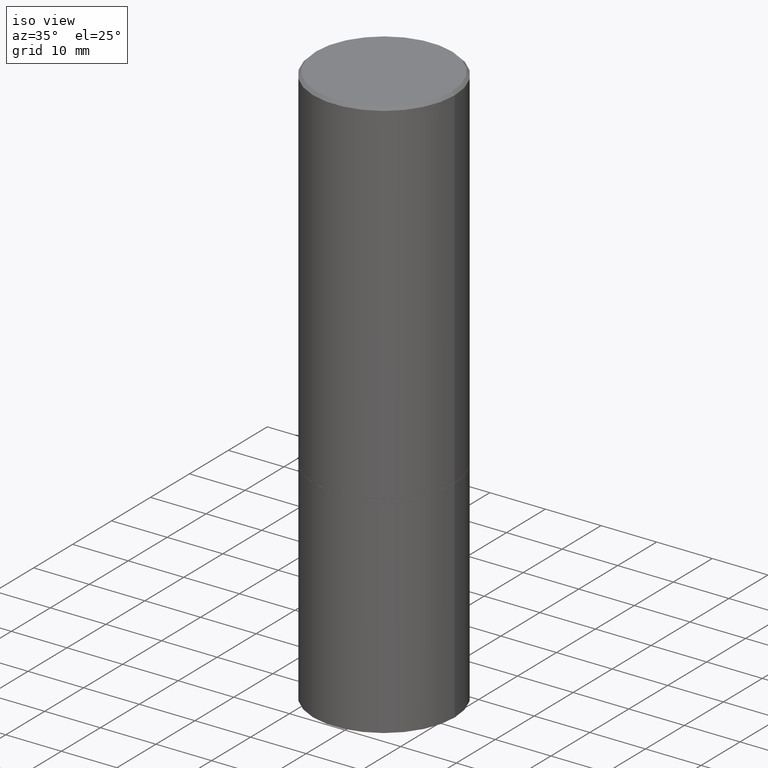
[diagram: clean part render]
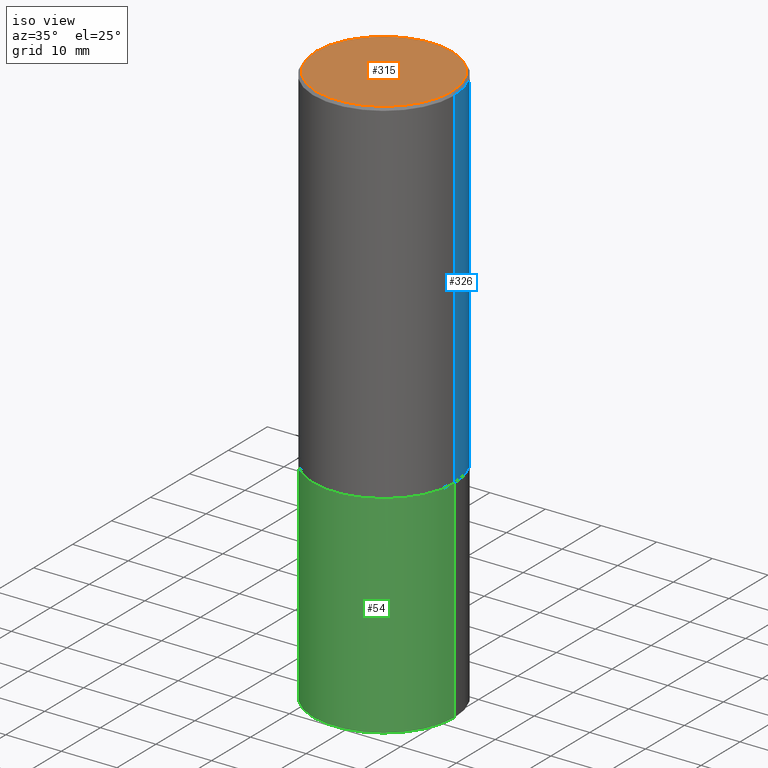
[diagram: same view with three faces highlighted in distinct colors, each labeled with its STEP entity id]
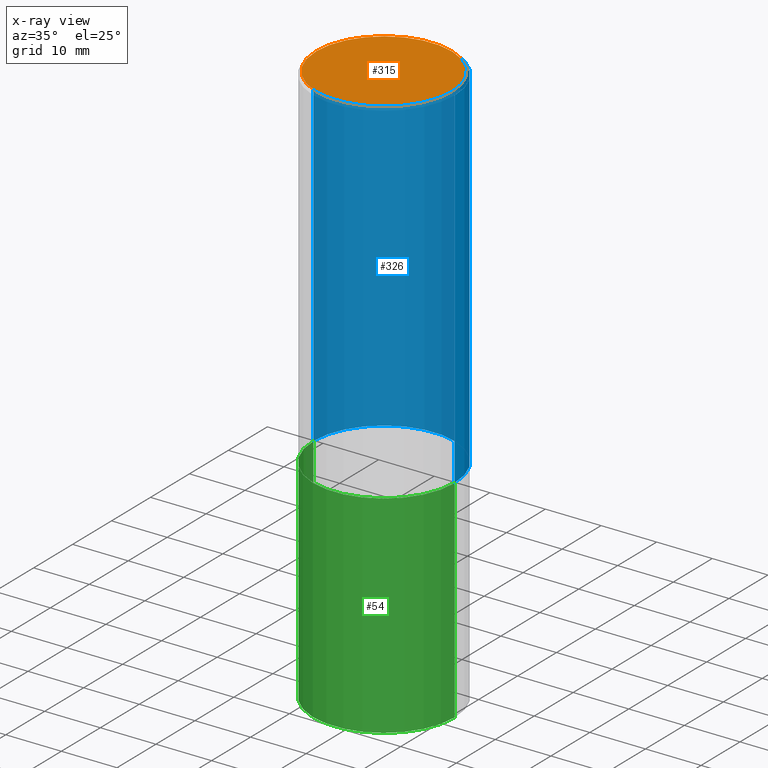
[diagram: x-ray of the same camera — body ghosted, the three highlighted faces saturated]
A machine part, iso view with three faces highlighted in distinct colors.
The next image is the same camera in x-ray (body ghosted, the three faces saturated) — at least one of them is partly hidden behind the body in this view.
Their STEP definitions:

[orange] entity #315 — the highlighted planar face has unit normal (0, -0, -1).
#14 = CARTESIAN_POINT ( 'NONE',  ( -3.131554243005659264E-46, 4.471029511141341874E-32, 1.280553747030123384E-17 ) ) ;
#36 = CARTESIAN_POINT ( 'NONE',  ( -0.4799999999999995381, 3.386736898677836041E-15, 1.280553747027767124E-17 ) ) ;
#46 = AXIS2_PLACEMENT_3D ( 'NONE', #14, #242, #120 ) ;
#68 = CARTESIAN_POINT ( 'NONE',  ( 0.4799999999999995381, -3.396558832296479338E-15, 1.280553747032483033E-17 ) ) ;
#69 = CARTESIAN_POINT ( 'NONE',  ( 3.351822085289404392E-15, 0.4799999999999995381, -1.669508273909557670E-15 ) ) ;
#83 = CARTESIAN_POINT ( 'NONE',  ( -3.131554243005659264E-46, 4.471029511141341874E-32, 1.280553747030123384E-17 ) ) ;
#84 = VERTEX_POINT ( 'NONE', #68 ) ;
#113 = DIRECTION ( 'NONE',  ( -2.445468806185136597E-29, 3.491481338843145583E-15, 1.000000000000000000 ) ) ;
#120 = DIRECTION ( 'NONE',  ( 1.000000000000000000, -6.982962677686266711E-15, 4.876036955247133888E-29 ) ) ;
#130 = EDGE_LOOP ( 'NONE', ( #362, #313 ) ) ;
#154 = DIRECTION ( 'NONE',  ( 1.000000000000000000, -6.982962677686266711E-15, 4.876036955247133888E-29 ) ) ;
#157 = AXIS2_PLACEMENT_3D ( 'NONE', #69, #183, #303 ) ;
#161 = EDGE_CURVE ( 'NONE', #255, #84, #226, .T. ) ;
#177 = AXIS2_PLACEMENT_3D ( 'NONE', #83, #113, #154 ) ;
#183 = DIRECTION ( 'NONE',  ( 2.438088387897960049E-29, -3.491481338843145188E-15, -1.000000000000000000 ) ) ;
#212 = FACE_OUTER_BOUND ( 'NONE', #130, .T. ) ;
#222 = CIRCLE ( 'NONE', #46, 0.4799999999999995381 ) ;
#226 = CIRCLE ( 'NONE', #177, 0.4799999999999995381 ) ;
#242 = DIRECTION ( 'NONE',  ( -2.445468806185136597E-29, 3.491481338843145583E-15, 1.000000000000000000 ) ) ;
#255 = VERTEX_POINT ( 'NONE', #36 ) ;
#281 = EDGE_CURVE ( 'NONE', #84, #255, #222, .T. ) ;
#303 = DIRECTION ( 'NONE',  ( -1.000000000000000000, 6.982962677686265922E-15, -4.876176775795935793E-29 ) ) ;
#313 = ORIENTED_EDGE ( 'NONE', *, *, #281, .T. ) ;
#315 = ADVANCED_FACE ( 'NONE', ( #212 ), #342, .F. ) ;
#342 = PLANE ( 'NONE',  #157 ) ;
#362 = ORIENTED_EDGE ( 'NONE', *, *, #161, .T. ) ;

[blue] entity #326 — the highlighted cylindrical surface (partial cylindrical patch) has radius 12.7 mm, axis along (-0, 0, 1).
#11 = AXIS2_PLACEMENT_3D ( 'NONE', #63, #102, #156 ) ;
#28 = CARTESIAN_POINT ( 'NONE',  ( 0.5000000000000000000, -1.221669320461215371E-14, -2.499000000000000110 ) ) ;
#31 = CARTESIAN_POINT ( 'NONE',  ( -0.4999999999999996114, 3.421651712066267296E-15, -0.02000000000000009409 ) ) ;
#38 = LINE ( 'NONE', #214, #59 ) ;
#41 = CIRCLE ( 'NONE', #273, 0.4999999999999996114 ) ;
#57 = LINE ( 'NONE', #167, #288 ) ;
#59 = VECTOR ( 'NONE', #265, 39.37007874015748143 ) ;
#60 = VERTEX_POINT ( 'NONE', #28 ) ;
#63 = CARTESIAN_POINT ( 'NONE',  ( 0.000000000000000000, 0.000000000000000000, 0.000000000000000000 ) ) ;
#67 = ORIENTED_EDGE ( 'NONE', *, *, #152, .F. ) ;
#71 = CIRCLE ( 'NONE', #254, 0.5000000000000000000 ) ;
#101 = CYLINDRICAL_SURFACE ( 'NONE', #11, 0.4999999999999997780 ) ;
#102 = DIRECTION ( 'NONE',  ( -2.445468806185136597E-29, 3.491481338843145583E-15, 1.000000000000000000 ) ) ;
#106 = ORIENTED_EDGE ( 'NONE', *, *, #228, .F. ) ;
#129 = CARTESIAN_POINT ( 'NONE',  ( 6.111226546656657010E-29, -8.725211865769021935E-15, -2.499000000000000110 ) ) ;
#143 = DIRECTION ( 'NONE',  ( -2.445468806185136877E-29, 3.491481338843145188E-15, 1.000000000000000000 ) ) ;
#152 = EDGE_CURVE ( 'NONE', #60, #366, #57, .T. ) ;
#156 = DIRECTION ( 'NONE',  ( 1.000000000000000000, -6.982962677686266711E-15, 4.876176775795935793E-29 ) ) ;
#167 = CARTESIAN_POINT ( 'NONE',  ( 0.4999999999999997780, -3.491481338843131778E-15, 2.438088387897966775E-29 ) ) ;
#189 = DIRECTION ( 'NONE',  ( -2.445468806185136597E-29, 3.491481338843145583E-15, 1.000000000000000000 ) ) ;
#208 = DIRECTION ( 'NONE',  ( -2.445468806185136597E-29, 3.491481338843145583E-15, 1.000000000000000000 ) ) ;
#214 = CARTESIAN_POINT ( 'NONE',  ( -0.4999999999999997780, 3.552713678800499352E-15, -2.459467545127452050E-29 ) ) ;
#216 = CARTESIAN_POINT ( 'NONE',  ( -0.5000000000000000000, -8.448070674724393209E-16, -2.499000000000000110 ) ) ;
#228 = EDGE_CURVE ( 'NONE', #366, #259, #41, .T. ) ;
#252 = EDGE_CURVE ( 'NONE', #314, #259, #38, .T. ) ;
#253 = CARTESIAN_POINT ( 'NONE',  ( 0.4999999999999996114, -3.500078625662626318E-15, -0.02000000000000009409 ) ) ;
#254 = AXIS2_PLACEMENT_3D ( 'NONE', #129, #189, #360 ) ;
#256 = ORIENTED_EDGE ( 'NONE', *, *, #252, .T. ) ;
#259 = VERTEX_POINT ( 'NONE', #31 ) ;
#265 = DIRECTION ( 'NONE',  ( -2.445468806185136877E-29, 3.491481338843145188E-15, 1.000000000000000000 ) ) ;
#273 = AXIS2_PLACEMENT_3D ( 'NONE', #346, #208, #323 ) ;
#288 = VECTOR ( 'NONE', #143, 39.37007874015748143 ) ;
#314 = VERTEX_POINT ( 'NONE', #216 ) ;
#323 = DIRECTION ( 'NONE',  ( 1.000000000000000000, -6.982962677686266711E-15, 0.000000000000000000 ) ) ;
#326 = ADVANCED_FACE ( 'NONE', ( #354 ), #101, .T. ) ;
#337 = EDGE_LOOP ( 'NONE', ( #344, #256, #106, #67 ) ) ;
#343 = EDGE_CURVE ( 'NONE', #60, #314, #71, .T. ) ;
#344 = ORIENTED_EDGE ( 'NONE', *, *, #343, .T. ) ;
#346 = CARTESIAN_POINT ( 'NONE',  ( 4.890937612370296805E-31, -6.982962677686323656E-17, -0.02000000000000009409 ) ) ;
#354 = FACE_OUTER_BOUND ( 'NONE', #337, .T. ) ;
#360 = DIRECTION ( 'NONE',  ( 1.000000000000000000, -6.982962677686265133E-15, 0.000000000000000000 ) ) ;
#366 = VERTEX_POINT ( 'NONE', #253 ) ;

[green] entity #54 — the highlighted cylindrical surface (partial cylindrical patch) has radius 12.7 mm, axis along (-0, 0, 1).
#3 = VERTEX_POINT ( 'NONE', #291 ) ;
#5 = DIRECTION ( 'NONE',  ( -2.445468806185136877E-29, 3.491481338843145188E-15, 1.000000000000000000 ) ) ;
#6 = DIRECTION ( 'NONE',  ( -2.445468806185136597E-29, 3.491481338843145583E-15, 1.000000000000000000 ) ) ;
#20 = EDGE_CURVE ( 'NONE', #3, #163, #197, .T. ) ;
#37 = ORIENTED_EDGE ( 'NONE', *, *, #95, .T. ) ;
#51 = VERTEX_POINT ( 'NONE', #296 ) ;
#54 = ADVANCED_FACE ( 'NONE', ( #243 ), #89, .T. ) ;
#55 = ORIENTED_EDGE ( 'NONE', *, *, #261, .T. ) ;
#58 = AXIS2_PLACEMENT_3D ( 'NONE', #110, #235, #341 ) ;
#74 = VECTOR ( 'NONE', #5, 39.37007874015748143 ) ;
#85 = VERTEX_POINT ( 'NONE', #145 ) ;
#87 = ORIENTED_EDGE ( 'NONE', *, *, #107, .F. ) ;
#89 = CYLINDRICAL_SURFACE ( 'NONE', #124, 0.5000000000000000000 ) ;
#95 = EDGE_CURVE ( 'NONE', #85, #163, #266, .T. ) ;
#97 = CARTESIAN_POINT ( 'NONE',  ( 0.5000000000000000000, -3.491481338843133355E-15, 2.438088387897967896E-29 ) ) ;
#107 = EDGE_CURVE ( 'NONE', #51, #3, #205, .T. ) ;
#110 = CARTESIAN_POINT ( 'NONE',  ( 6.113672015462842613E-29, -8.728703347107864943E-15, -2.500000000000000000 ) ) ;
#112 = DIRECTION ( 'NONE',  ( -2.445468806185136597E-29, 3.491481338843145583E-15, 1.000000000000000000 ) ) ;
#116 = CARTESIAN_POINT ( 'NONE',  ( -0.5000000000000000000, 3.552713678800500929E-15, -2.459467545127452891E-29 ) ) ;
#124 = AXIS2_PLACEMENT_3D ( 'NONE', #318, #112, #339 ) ;
#126 = CIRCLE ( 'NONE', #263, 0.5000000000000000000 ) ;
#132 = EDGE_LOOP ( 'NONE', ( #87, #55, #37, #322 ) ) ;
#145 = CARTESIAN_POINT ( 'NONE',  ( 0.5000000000000000000, -1.745740669421571411E-14, -4.000000000000000000 ) ) ;
#149 = DIRECTION ( 'NONE',  ( 1.000000000000000000, -6.982962677686266711E-15, 0.000000000000000000 ) ) ;
#162 = VECTOR ( 'NONE', #240, 39.37007874015748143 ) ;
#163 = VERTEX_POINT ( 'NONE', #275 ) ;
#197 = CIRCLE ( 'NONE', #58, 0.5000000000000000000 ) ;
#205 = LINE ( 'NONE', #116, #162 ) ;
#235 = DIRECTION ( 'NONE',  ( -2.445468806185136597E-29, 3.491481338843145583E-15, 1.000000000000000000 ) ) ;
#240 = DIRECTION ( 'NONE',  ( -2.445468806185136877E-29, 3.491481338843145188E-15, 1.000000000000000000 ) ) ;
#243 = FACE_OUTER_BOUND ( 'NONE', #132, .T. ) ;
#261 = EDGE_CURVE ( 'NONE', #51, #85, #126, .T. ) ;
#263 = AXIS2_PLACEMENT_3D ( 'NONE', #268, #6, #149 ) ;
#266 = LINE ( 'NONE', #97, #74 ) ;
#268 = CARTESIAN_POINT ( 'NONE',  ( 9.781875224740546387E-29, -1.396592535537258233E-14, -4.000000000000000000 ) ) ;
#275 = CARTESIAN_POINT ( 'NONE',  ( 0.5000000000000000000, -1.222018468595099830E-14, -2.500000000000000000 ) ) ;
#291 = CARTESIAN_POINT ( 'NONE',  ( -0.5000000000000000000, -7.794600672439723496E-15, -2.500000000000000000 ) ) ;
#296 = CARTESIAN_POINT ( 'NONE',  ( -0.5000000000000000000, -7.794600672439723496E-15, -4.000000000000000000 ) ) ;
#318 = CARTESIAN_POINT ( 'NONE',  ( 0.000000000000000000, 0.000000000000000000, 0.000000000000000000 ) ) ;
#322 = ORIENTED_EDGE ( 'NONE', *, *, #20, .F. ) ;
#339 = DIRECTION ( 'NONE',  ( 1.000000000000000000, -6.982962677686266711E-15, 4.876176775795935793E-29 ) ) ;
#341 = DIRECTION ( 'NONE',  ( 1.000000000000000000, -6.982962677686269077E-15, 0.000000000000000000 ) ) ;